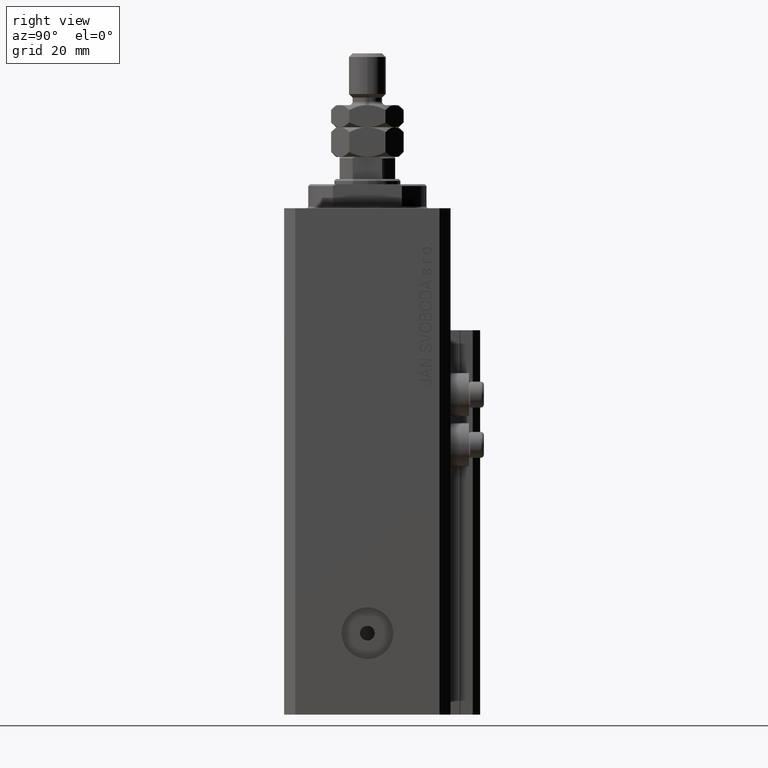
[diagram: clean part render]
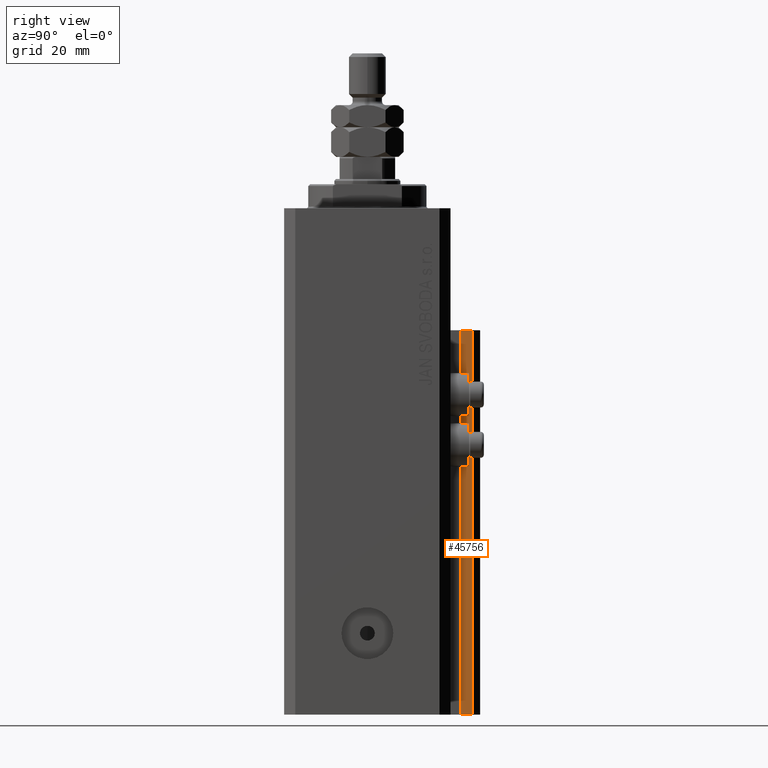
[diagram: same view with one face highlighted and labeled with its STEP entity id]
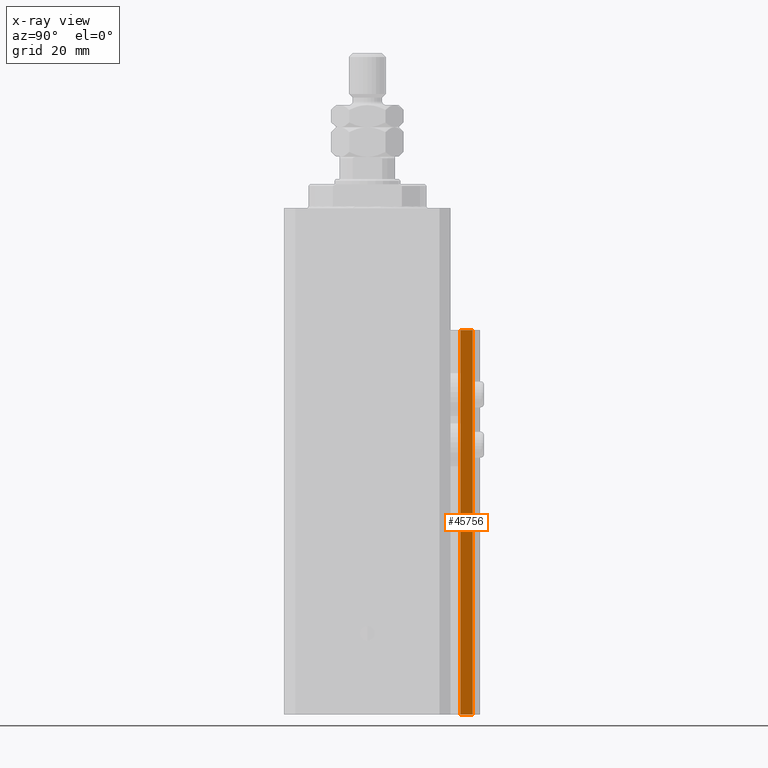
[diagram: x-ray of the same camera — body ghosted, the highlighted face saturated]
A machine part, right view. The second image highlights one B-rep face of the part: STEP entity #45756.
The next image is the same camera in x-ray: the body ghosted, the highlighted face saturated — about 0% of this face is hidden behind the body in this view.
In plain terms, the highlighted planar face has unit normal (1, 0, 0).
Its self-contained STEP definition (entity closure, byte-faithful):
#2045 = ORIENTED_EDGE ( 'NONE', *, *, #22323, .T. ) ;
#3978 = DIRECTION ( 'NONE',  ( 1.000000000000000000, 0.000000000000000000, 0.000000000000000000 ) ) ;
#13192 = CARTESIAN_POINT ( 'NONE',  ( 12.00000000000000178, 25.19999999999951257, -33.00000000000000000 ) ) ;
#14023 = CARTESIAN_POINT ( 'NONE',  ( 12.00000000000000178, 25.19999999999951257, -137.0000000000000000 ) ) ;
#15643 = CARTESIAN_POINT ( 'NONE',  ( 12.00000000000000355, 25.19999999999951257, -137.0000000000000000 ) ) ;
#17057 = CARTESIAN_POINT ( 'NONE',  ( 12.00000000000000178, 28.49999999999950973, -137.0000000000000000 ) ) ;
#19026 = EDGE_LOOP ( 'NONE', ( #19553, #22787, #38783, #2045 ) ) ;
#19553 = ORIENTED_EDGE ( 'NONE', *, *, #39598, .F. ) ;
#20177 = CARTESIAN_POINT ( 'NONE',  ( 12.00000000000000355, 25.19999999999951257, -137.0000000000000000 ) ) ;
#21251 = VERTEX_POINT ( 'NONE', #15643 ) ;
#21270 = CARTESIAN_POINT ( 'NONE',  ( 12.00000000000000355, 25.19999999999951257, -33.00000000000000000 ) ) ;
#22323 = EDGE_CURVE ( 'NONE', #39022, #33773, #43216, .T. ) ;
#22787 = ORIENTED_EDGE ( 'NONE', *, *, #47696, .F. ) ;
#24622 = DIRECTION ( 'NONE',  ( 0.000000000000000000, 1.000000000000000000, 0.000000000000000000 ) ) ;
#24703 = DIRECTION ( 'NONE',  ( 0.000000000000000000, 0.000000000000000000, 1.000000000000000000 ) ) ;
#24850 = DIRECTION ( 'NONE',  ( 0.000000000000000000, 0.000000000000000000, 1.000000000000000000 ) ) ;
#25667 = CARTESIAN_POINT ( 'NONE',  ( 12.00000000000000178, 25.19999999999951257, -137.0000000000000000 ) ) ;
#30105 = PLANE ( 'NONE',  #35272 ) ;
#31281 = VECTOR ( 'NONE', #24703, 1000.000000000000000 ) ;
#33773 = VERTEX_POINT ( 'NONE', #44927 ) ;
#34892 = LINE ( 'NONE', #13192, #46111 ) ;
#35272 = AXIS2_PLACEMENT_3D ( 'NONE', #25667, #3978, #40711 ) ;
#36882 = VECTOR ( 'NONE', #24850, 1000.000000000000000 ) ;
#38252 = VECTOR ( 'NONE', #24622, 1000.000000000000000 ) ;
#38783 = ORIENTED_EDGE ( 'NONE', *, *, #41603, .T. ) ;
#39022 = VERTEX_POINT ( 'NONE', #17057 ) ;
#39429 = LINE ( 'NONE', #14023, #38252 ) ;
#39598 = EDGE_CURVE ( 'NONE', #46992, #33773, #34892, .T. ) ;
#40711 = DIRECTION ( 'NONE',  ( 0.000000000000000000, 0.000000000000000000, -1.000000000000000000 ) ) ;
#41603 = EDGE_CURVE ( 'NONE', #21251, #39022, #39429, .T. ) ;
#43216 = LINE ( 'NONE', #47174, #31281 ) ;
#44927 = CARTESIAN_POINT ( 'NONE',  ( 12.00000000000000178, 28.49999999999950973, -33.00000000000000000 ) ) ;
#45756 = ADVANCED_FACE ( 'NONE', ( #48368 ), #30105, .T. ) ;
#46111 = VECTOR ( 'NONE', #46242, 1000.000000000000000 ) ;
#46242 = DIRECTION ( 'NONE',  ( 0.000000000000000000, 1.000000000000000000, 0.000000000000000000 ) ) ;
#46577 = LINE ( 'NONE', #20177, #36882 ) ;
#46992 = VERTEX_POINT ( 'NONE', #21270 ) ;
#47174 = CARTESIAN_POINT ( 'NONE',  ( 12.00000000000000178, 28.49999999999950973, -137.0000000000000000 ) ) ;
#47696 = EDGE_CURVE ( 'NONE', #21251, #46992, #46577, .T. ) ;
#48368 = FACE_OUTER_BOUND ( 'NONE', #19026, .T. ) ;